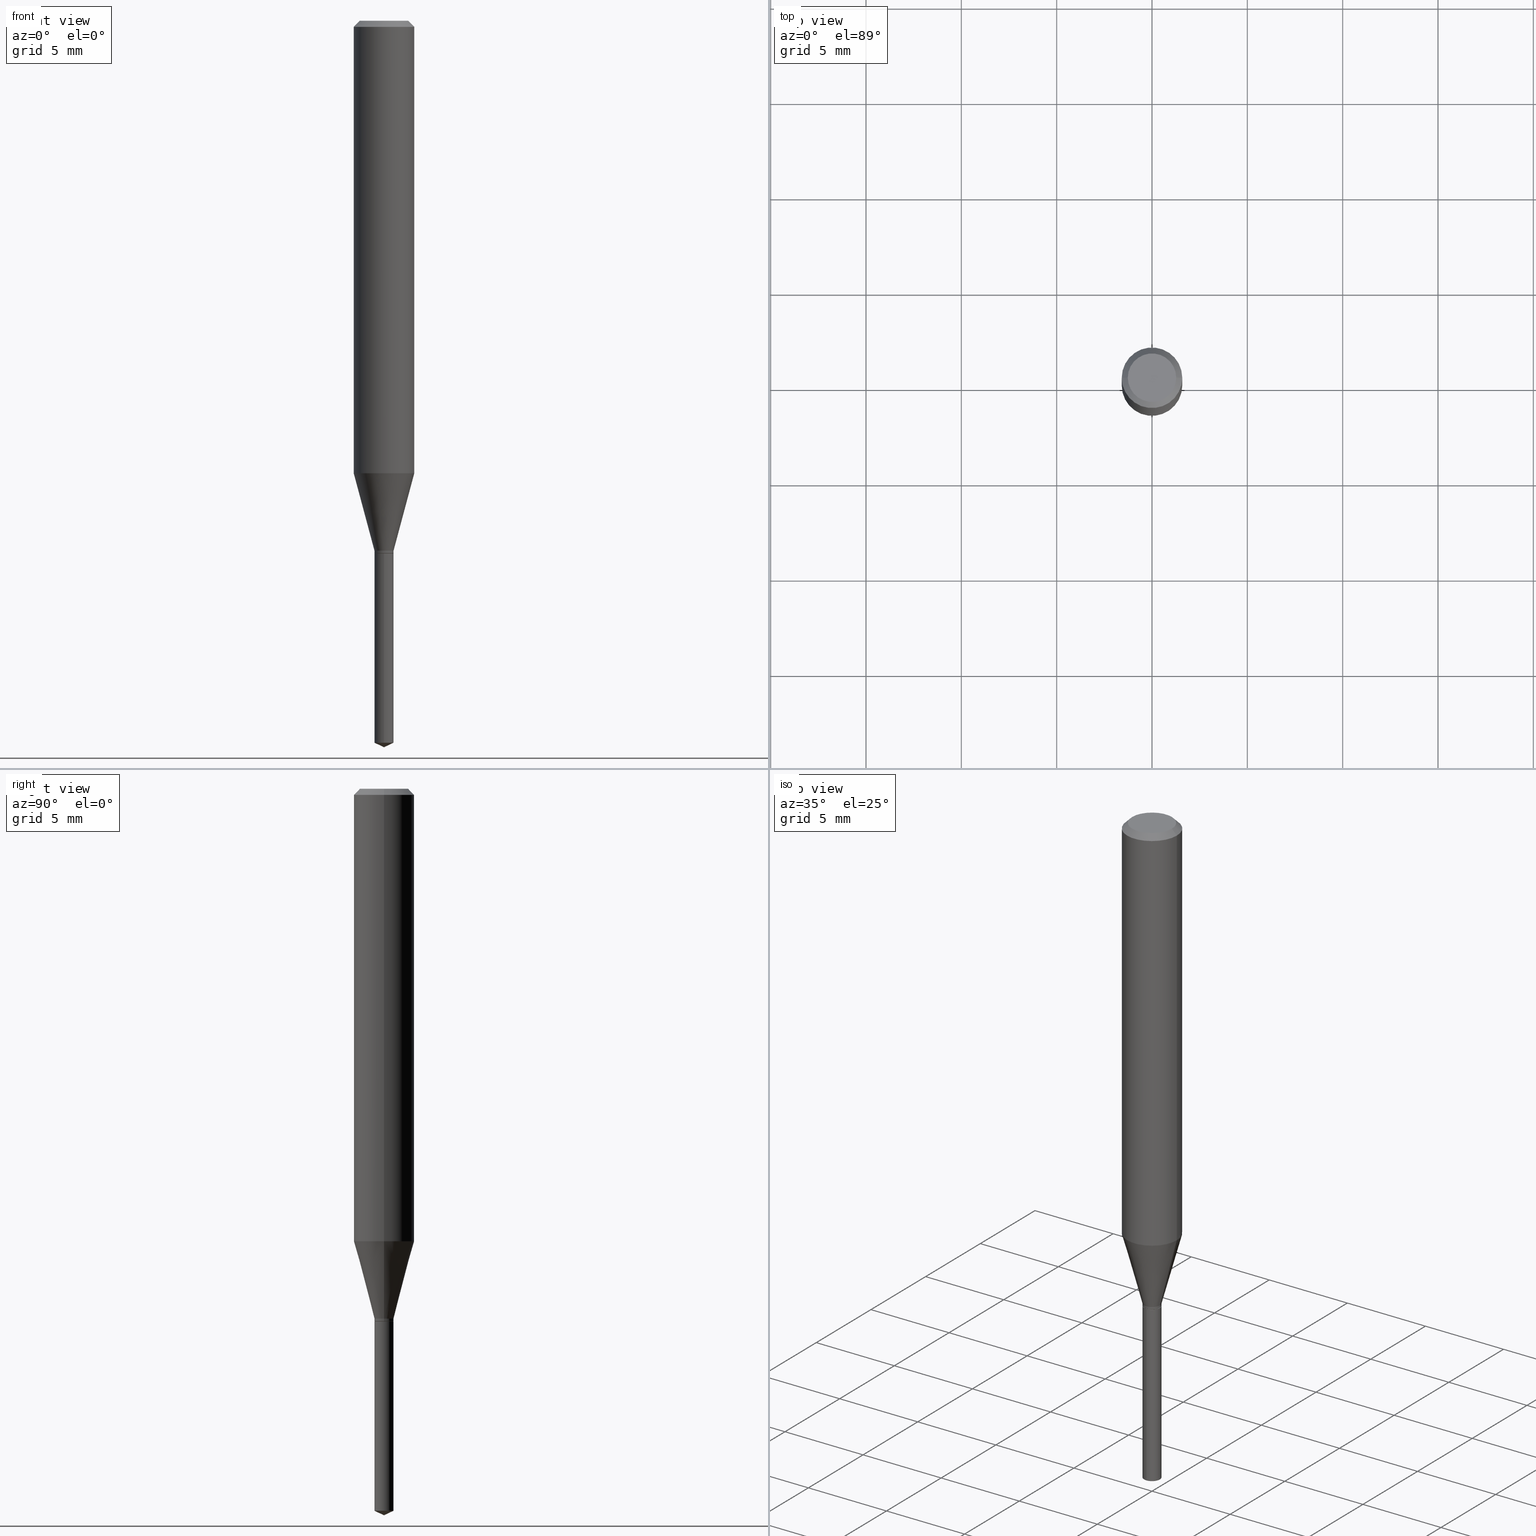
[diagram: canonical four-view strip — front | top / right | iso, engineering-drawing reading convention]
A machine part, canonical four-view strip (front | top / right | iso — engineering-drawing reading convention). The complete STEP part file that produces these views, byte-faithful:
ISO-10303-21;
HEADER;
FILE_DESCRIPTION (( 'STEP AP203' ),
    '1' );
FILE_NAME ('07151.STEP',
    '2024-04-23T19:46:03',
    ( '' ),
    ( '' ),
    'SwSTEP 2.0',
    'SolidWorks 2023',
    '' );
FILE_SCHEMA (( 'CONFIG_CONTROL_DESIGN' ));
ENDSEC;

DATA;
#1 = FACE_OUTER_BOUND ( 'NONE', #287, .T. ) ;
#2 = DIMENSIONAL_EXPONENTS ( 1.000000000000000000, 0.000000000000000000, 0.000000000000000000, 0.000000000000000000, 0.000000000000000000, 0.000000000000000000, 0.000000000000000000 ) ;
#3 = CARTESIAN_POINT ( 'NONE',  ( 3.644757197305334190E-29, -5.206553623865002220E-15, -1.490813739134346783 ) ) ;
#4 = DIRECTION ( 'NONE',  ( -1.000000000000000000, 6.982962677686266711E-15, 0.000000000000000000 ) ) ;
#5 = AXIS2_PLACEMENT_3D ( 'NONE', #435, #340, #79 ) ;
#6 = DIRECTION ( 'NONE',  ( 1.000000000000000000, -6.982962677686265922E-15, 4.876194921942043128E-29 ) ) ;
#7 =( NAMED_UNIT ( * ) PLANE_ANGLE_UNIT ( ) SI_UNIT ( $, .RADIAN. ) );
#8 = DATE_AND_TIME ( #191, #358 ) ;
#9 = DIRECTION ( 'NONE',  ( -2.445468806185136877E-29, 3.491481338843145188E-15, 1.000000000000000000 ) ) ;
#10 = COORDINATED_UNIVERSAL_TIME_OFFSET ( 5, 0, .BEHIND. ) ;
#11 = EDGE_CURVE ( 'NONE', #373, #155, #243, .T. ) ;
#12 = VECTOR ( 'NONE', #389, 39.37007874015748854 ) ;
#13 = CIRCLE ( 'NONE', #67, 0.01969999999999999876 ) ;
#14 = APPROVAL_STATUS ( 'not_yet_approved' ) ;
#15 = EDGE_LOOP ( 'NONE', ( #194, #472, #193, #134 ) ) ;
#16 = PERSON_AND_ORGANIZATION_ROLE ( 'creator' ) ;
#17 = PERSON_AND_ORGANIZATION ( #262, #469 ) ;
#18 = AXIS2_PLACEMENT_3D ( 'NONE', #413, #408, #380 ) ;
#19 = ORIENTED_EDGE ( 'NONE', *, *, #131, .T. ) ;
#20 = EDGE_CURVE ( 'NONE', #64, #198, #291, .T. ) ;
#21 = ORIENTED_EDGE ( 'NONE', *, *, #205, .F. ) ;
#22 = EDGE_LOOP ( 'NONE', ( #277, #85, #247, #161 ) ) ;
#23 = DIRECTION ( 'NONE',  ( 1.000000000000000000, -6.982962677686277755E-15, 0.000000000000000000 ) ) ;
#24 = ORIENTED_EDGE ( 'NONE', *, *, #329, .F. ) ;
#25 = ORIENTED_EDGE ( 'NONE', *, *, #125, .T. ) ;
#26 = EDGE_CURVE ( 'NONE', #425, #213, #326, .T. ) ;
#27 = DIRECTION ( 'NONE',  ( 1.000000000000000000, -6.982962677686277755E-15, 0.000000000000000000 ) ) ;
#28 = DIRECTION ( 'NONE',  ( 1.000000000000000000, -6.982962677686265922E-15, 4.876194921942043128E-29 ) ) ;
#29 = AXIS2_PLACEMENT_3D ( 'NONE', #320, #173, #296 ) ;
#30 = AXIS2_PLACEMENT_3D ( 'NONE', #265, #147, #229 ) ;
#31 = CARTESIAN_POINT ( 'NONE',  ( 2.690015686803650369E-29, -3.840629472727460101E-15, -1.100000000000000089 ) ) ;
#32 = DIRECTION ( 'NONE',  ( -2.442957897581693293E-29, 3.495077102875319228E-15, 1.000000000000000000 ) ) ;
#33 = COORDINATED_UNIVERSAL_TIME_OFFSET ( 5, 0, .BEHIND. ) ;
#34 = DIRECTION ( 'NONE',  ( 1.000000000000000000, -6.982962677686278543E-15, 0.000000000000000000 ) ) ;
#35 = DIRECTION ( 'NONE',  ( 2.442957897581692732E-29, -3.495077102875319228E-15, -1.000000000000000000 ) ) ;
#36 = DIRECTION ( 'NONE',  ( -6.982962677686266711E-15, -1.000000000000000000, 3.520397390770457025E-15 ) ) ;
#37 = PLANE ( 'NONE',  #409 ) ;
#38 = VECTOR ( 'NONE', #440, 39.37007874015748854 ) ;
#39 = CARTESIAN_POINT ( 'NONE',  ( -0.06250000000000000000, 3.927916506198521080E-16, -0.01250000000000008049 ) ) ;
#40 = LINE ( 'NONE', #379, #84 ) ;
#41 =( GEOMETRIC_REPRESENTATION_CONTEXT ( 3 ) GLOBAL_UNCERTAINTY_ASSIGNED_CONTEXT ( ( #137 ) ) GLOBAL_UNIT_ASSIGNED_CONTEXT ( ( #113, #7, #189 ) ) REPRESENTATION_CONTEXT ( 'NONE', 'WORKASPACE' ) );
#42 = FACE_OUTER_BOUND ( 'NONE', #207, .T. ) ;
#43 = ADVANCED_FACE ( 'NONE', ( #370 ), #295, .T. ) ;
#44 = CARTESIAN_POINT ( 'NONE',  ( 0.01969999999999999876, -1.375643647504194363E-16, 9.606068248317991466E-31 ) ) ;
#45 = APPROVAL_DATE_TIME ( #390, #112 ) ;
#46 = DIRECTION ( 'NONE',  ( -2.445468806185136597E-29, 3.491481338843145583E-15, 1.000000000000000000 ) ) ;
#47 = SHAPE_DEFINITION_REPRESENTATION ( #55, #167 ) ;
#48 = EDGE_CURVE ( 'NONE', #121, #256, #100, .T. ) ;
#49 = ORIENTED_EDGE ( 'NONE', *, *, #48, .T. ) ;
#50 = CONICAL_SURFACE ( 'NONE', #222, 0.01969999999999999876, 0.2617993877991499629 ) ;
#51 = EDGE_LOOP ( 'NONE', ( #359, #52, #417, #234 ) ) ;
#52 = ORIENTED_EDGE ( 'NONE', *, *, #386, .T. ) ;
#53 = EDGE_LOOP ( 'NONE', ( #396, #21 ) ) ;
#54 = FACE_OUTER_BOUND ( 'NONE', #51, .T. ) ;
#55 = PRODUCT_DEFINITION_SHAPE ( 'NONE', 'NONE',  #446 ) ;
#56 = FACE_OUTER_BOUND ( 'NONE', #163, .T. ) ;
#57 = ORIENTED_EDGE ( 'NONE', *, *, #283, .T. ) ;
#58 = PERSON_AND_ORGANIZATION_ROLE ( 'creator' ) ;
#59 = DIRECTION ( 'NONE',  ( -2.445468806185136597E-29, 3.491481338843145583E-15, 1.000000000000000000 ) ) ;
#60 = CC_DESIGN_PERSON_AND_ORGANIZATION_ASSIGNMENT ( #346, #464, ( #182 ) ) ;
#61 = ORIENTED_EDGE ( 'NONE', *, *, #317, .T. ) ;
#62 = LINE ( 'NONE', #331, #268 ) ;
#63 = ORIENTED_EDGE ( 'NONE', *, *, #443, .F. ) ;
#64 = VERTEX_POINT ( 'NONE', #75 ) ;
#65 = CARTESIAN_POINT ( 'NONE',  ( -9.251224594084451282E-28, 1.323628004292452236E-13, 37.87007874015748143 ) ) ;
#66 = DIRECTION ( 'NONE',  ( -2.445468806185136877E-29, 3.491481338843145188E-15, 1.000000000000000000 ) ) ;
#67 = AXIS2_PLACEMENT_3D ( 'NONE', #337, #383, #342 ) ;
#68 = EDGE_LOOP ( 'NONE', ( #61, #462, #118, #436 ) ) ;
#69 = PERSON_AND_ORGANIZATION_ROLE ( 'design_owner' ) ;
#70 = CARTESIAN_POINT ( 'NONE',  ( 2.675587420847158338E-29, -3.820029732828286359E-15, -1.094100000000000295 ) ) ;
#71 = ORIENTED_EDGE ( 'NONE', *, *, #78, .T. ) ;
#72 = CYLINDRICAL_SURFACE ( 'NONE', #400, 0.01969999999999999876 ) ;
#73 = CARTESIAN_POINT ( 'NONE',  ( 0.06250000000000005551, -4.364351673553920638E-16, 3.047610484872462323E-30 ) ) ;
#74 = CARTESIAN_POINT ( 'NONE',  ( 0.000000000000000000, 0.000000000000000000, 0.000000000000000000 ) ) ;
#75 = CARTESIAN_POINT ( 'NONE',  ( 0.01969999999999999876, -3.957594097578706363E-15, -1.094100000000000295 ) ) ;
#76 = ADVANCED_FACE ( 'NONE', ( #328 ), #37, .F. ) ;
#77 = AXIS2_PLACEMENT_3D ( 'NONE', #135, #293, #444 ) ;
#78 = EDGE_CURVE ( 'NONE', #406, #307, #427, .T. ) ;
#79 = DIRECTION ( 'NONE',  ( 1.000000000000000000, -6.982962677686278543E-15, 0.000000000000000000 ) ) ;
#80 = CIRCLE ( 'NONE', #5, 0.01969999999999999876 ) ;
#81 = CC_DESIGN_APPROVAL ( #185, ( #488 ) ) ;
#82 = EDGE_LOOP ( 'NONE', ( #19, #289, #139, #63 ) ) ;
#83 = EDGE_CURVE ( 'NONE', #198, #373, #180, .T. ) ;
#84 = VECTOR ( 'NONE', #219, 39.37007874015748143 ) ;
#85 = ORIENTED_EDGE ( 'NONE', *, *, #391, .F. ) ;
#86 = COORDINATED_UNIVERSAL_TIME_OFFSET ( 5, 0, .BEHIND. ) ;
#87 = ORIENTED_EDGE ( 'NONE', *, *, #386, .F. ) ;
#88 = EDGE_CURVE ( 'NONE', #157, #198, #487, .T. ) ;
#89 = ORIENTED_EDGE ( 'NONE', *, *, #88, .T. ) ;
#90 = PERSON_AND_ORGANIZATION ( #262, #469 ) ;
#91 = DIRECTION ( 'NONE',  ( 1.000000000000000000, -6.982962677686265922E-15, 4.876176775795935232E-29 ) ) ;
#92 = AXIS2_PLACEMENT_3D ( 'NONE', #190, #345, #148 ) ;
#93 = FACE_OUTER_BOUND ( 'NONE', #351, .T. ) ;
#94 = FACE_OUTER_BOUND ( 'NONE', #15, .T. ) ;
#95 = DESIGN_CONTEXT ( 'detailed design', #463, 'design' ) ;
#96 = CARTESIAN_POINT ( 'NONE',  ( 2.688792952400557567E-29, -3.838883732058038598E-15, -1.099499999999999922 ) ) ;
#97 = DIRECTION ( 'NONE',  ( 2.445468806185136597E-29, -3.491481338843145583E-15, -1.000000000000000000 ) ) ;
#98 = VERTEX_POINT ( 'NONE', #476 ) ;
#99 = CARTESIAN_POINT ( 'NONE',  ( 0.06250000000000011102, -3.698764390073353980E-15, -0.9343682254360521355 ) ) ;
#100 = LINE ( 'NONE', #177, #221 ) ;
#101 = AXIS2_PLACEMENT_3D ( 'NONE', #3, #455, #299 ) ;
#102 = AXIS2_PLACEMENT_3D ( 'NONE', #416, #449, #6 ) ;
#103 = CARTESIAN_POINT ( 'NONE',  ( 0.06250000000000000000, -4.800786840909312308E-16, -0.01250000000000008049 ) ) ;
#104 = ORIENTED_EDGE ( 'NONE', *, *, #319, .F. ) ;
#105 = DIRECTION ( 'NONE',  ( -2.445468806185136877E-29, 3.491481338843145188E-15, 1.000000000000000000 ) ) ;
#106 = ORIENTED_EDGE ( 'NONE', *, *, #122, .F. ) ;
#107 = CARTESIAN_POINT ( 'NONE',  ( 0.01919999999999999832, -3.974702356139036309E-15, -1.099999999999999867 ) ) ;
#108 = ADVANCED_FACE ( 'NONE', ( #94 ), #438, .T. ) ;
#109 = VECTOR ( 'NONE', #66, 39.37007874015748143 ) ;
#110 = ADVANCED_FACE ( 'NONE', ( #336 ), #323, .T. ) ;
#111 = CARTESIAN_POINT ( 'NONE',  ( 1.399769189447761387E-16, 0.01969999999999479112, -1.490813739134346783 ) ) ;
#112 = APPROVAL ( #431, 'UNSPECIFIED' ) ;
#113 =( CONVERSION_BASED_UNIT ( 'INCH', #267 ) LENGTH_UNIT ( ) NAMED_UNIT ( #2 ) );
#114 = CARTESIAN_POINT ( 'NONE',  ( 0.01919999999999999832, -3.974702356139036309E-15, -1.099999999999999867 ) ) ;
#115 = CIRCLE ( 'NONE', #101, 0.01969999999999999876 ) ;
#116 = AXIS2_PLACEMENT_3D ( 'NONE', #206, #59, #23 ) ;
#117 = DIRECTION ( 'NONE',  ( 0.000000000000000000, 0.000000000000000000, 1.000000000000000000 ) ) ;
#118 = ORIENTED_EDGE ( 'NONE', *, *, #474, .F. ) ;
#119 = CARTESIAN_POINT ( 'NONE',  ( 0.06250000000000000000, -4.724246415962602840E-16, -0.01250000000000008049 ) ) ;
#120 = ADVANCED_FACE ( 'NONE', ( #448 ), #410, .T. ) ;
#121 = VERTEX_POINT ( 'NONE', #284 ) ;
#122 = EDGE_CURVE ( 'NONE', #64, #256, #80, .T. ) ;
#123 = ORIENTED_EDGE ( 'NONE', *, *, #20, .F. ) ;
#124 = CONICAL_SURFACE ( 'NONE', #116, 0.01919999999999999832, 0.7853981633975486432 ) ;
#125 = EDGE_CURVE ( 'NONE', #430, #467, #304, .T. ) ;
#126 = DIRECTION ( 'NONE',  ( -2.445468806185136597E-29, 3.491481338843145583E-15, 1.000000000000000000 ) ) ;
#127 = EDGE_LOOP ( 'NONE', ( #240, #204, #322 ) ) ;
#128 = CYLINDRICAL_SURFACE ( 'NONE', #199, 0.01969999999999999876 ) ;
#129 = DIRECTION ( 'NONE',  ( -2.442957897581693293E-29, 3.495077102875318834E-15, 1.000000000000000000 ) ) ;
#130 = VECTOR ( 'NONE', #271, 39.37007874015748143 ) ;
#131 = EDGE_CURVE ( 'NONE', #315, #425, #115, .T. ) ;
#132 = CC_DESIGN_SECURITY_CLASSIFICATION ( #488, ( #182 ) ) ;
#133 = CARTESIAN_POINT ( 'NONE',  ( 3.056836007731440539E-31, -4.364351673553960451E-17, -0.01250000000000008049 ) ) ;
#134 = ORIENTED_EDGE ( 'NONE', *, *, #226, .F. ) ;
#135 = CARTESIAN_POINT ( 'NONE',  ( 3.056836007731440539E-31, -4.364351673553960451E-17, -0.01250000000000008049 ) ) ;
#136 = DIRECTION ( 'NONE',  ( 1.000000000000000000, -6.982962677686266711E-15, 4.876176775795935232E-29 ) ) ;
#137 = UNCERTAINTY_MEASURE_WITH_UNIT (LENGTH_MEASURE( 1.000000000000000082E-05 ), #113, 'distance_accuracy_value', 'NONE');
#138 = LINE ( 'NONE', #285, #385 ) ;
#139 = ORIENTED_EDGE ( 'NONE', *, *, #429, .F. ) ;
#140 = EDGE_LOOP ( 'NONE', ( #218, #71 ) ) ;
#141 = DIRECTION ( 'NONE',  ( -2.445468806185136597E-29, 3.491481338843145583E-15, 1.000000000000000000 ) ) ;
#142 = DIRECTION ( 'NONE',  ( 1.000000000000000000, -6.982962677686266711E-15, 0.000000000000000000 ) ) ;
#143 = CIRCLE ( 'NONE', #236, 0.01969999999999999876 ) ;
#144 = CIRCLE ( 'NONE', #77, 0.06250000000000000000 ) ;
#145 = DIRECTION ( 'NONE',  ( -6.982962677686266711E-15, -1.000000000000000000, 3.520397390770457025E-15 ) ) ;
#146 = CARTESIAN_POINT ( 'NONE',  ( 3.056836007731440539E-31, -4.364351673553960451E-17, -0.01250000000000008049 ) ) ;
#147 = DIRECTION ( 'NONE',  ( -2.438088387897960049E-29, 3.491481338843145188E-15, 1.000000000000000000 ) ) ;
#148 = DIRECTION ( 'NONE',  ( 1.000000000000000000, -6.982962677686277755E-15, 0.000000000000000000 ) ) ;
#149 = AXIS2_PLACEMENT_3D ( 'NONE', #150, #259, #4 ) ;
#150 = CARTESIAN_POINT ( 'NONE',  ( 3.056836007731440539E-31, -4.364351673553960451E-17, -0.01250000000000008049 ) ) ;
#151 = ADVANCED_FACE ( 'NONE', ( #54 ), #196, .T. ) ;
#152 = PLANE ( 'NONE',  #30 ) ;
#153 = PERSON_AND_ORGANIZATION_ROLE ( 'classification_officer' ) ;
#154 = AXIS2_PLACEMENT_3D ( 'NONE', #248, #405, #479 ) ;
#155 = VERTEX_POINT ( 'NONE', #398 ) ;
#156 = COORDINATED_UNIVERSAL_TIME_OFFSET ( 5, 0, .BEHIND. ) ;
#157 = VERTEX_POINT ( 'NONE', #473 ) ;
#158 = DATE_TIME_ROLE ( 'classification_date' ) ;
#159 = PERSON_AND_ORGANIZATION ( #262, #469 ) ;
#160 = LOCAL_TIME ( 15, 46, 3.000000000000000000, #86 ) ;
#161 = ORIENTED_EDGE ( 'NONE', *, *, #356, .T. ) ;
#162 = CARTESIAN_POINT ( 'NONE',  ( 0.000000000000000000, 0.000000000000000000, 0.000000000000000000 ) ) ;
#163 = EDGE_LOOP ( 'NONE', ( #321, #220, #399, #242 ) ) ;
#164 = APPROVAL_ROLE ( '' ) ;
#165 = DIRECTION ( 'NONE',  ( 6.439704144417028775E-15, 0.9063077870366519351, 0.4226182617406950559 ) ) ;
#166 = DIRECTION ( 'NONE',  ( 6.982962677686265922E-15, 1.000000000000000000, -3.495077102875319228E-15 ) ) ;
#167 = ADVANCED_BREP_SHAPE_REPRESENTATION ( '07151', ( #179, #352, #411 ), #41 ) ;
#168 = ADVANCED_FACE ( 'NONE', ( #56 ), #128, .T. ) ;
#169 = CARTESIAN_POINT ( 'NONE',  ( 2.284968348794427209E-29, -3.262329222717961522E-15, -0.9343682254360521355 ) ) ;
#170 = AXIS2_PLACEMENT_3D ( 'NONE', #360, #46, #347 ) ;
#171 = AXIS2_PLACEMENT_3D ( 'NONE', #74, #453, #183 ) ;
#172 = CARTESIAN_POINT ( 'NONE',  ( 2.690015686803650369E-29, -3.840629472727460101E-15, -1.100000000000000089 ) ) ;
#173 = DIRECTION ( 'NONE',  ( 2.438088387897960049E-29, -3.491481338843145188E-15, -1.000000000000000000 ) ) ;
#174 = CARTESIAN_POINT ( 'NONE',  ( 0.01969999999999999876, -3.957594097578706363E-15, -1.094100000000000295 ) ) ;
#175 = CALENDAR_DATE ( 2024, 23, 4 ) ;
#176 = DIRECTION ( 'NONE',  ( -2.445468806185136597E-29, 3.491481338843145583E-15, 1.000000000000000000 ) ) ;
#177 = CARTESIAN_POINT ( 'NONE',  ( -0.01969999999999999876, 1.399769189447397278E-16, -9.690302127802162501E-31 ) ) ;
#178 = DIRECTION ( 'NONE',  ( -2.442957897581693293E-29, 3.495077102875318834E-15, 1.000000000000000000 ) ) ;
#179 = MANIFOLD_SOLID_BREP ( 'Body-Move/Copy2[1]', #253 ) ;
#180 = LINE ( 'NONE', #73, #109 ) ;
#181 = CIRCLE ( 'NONE', #433, 0.01969999999999999876 ) ;
#182 = PRODUCT_DEFINITION_FORMATION_WITH_SPECIFIED_SOURCE ( 'ANY', '', #371, .NOT_KNOWN. ) ;
#183 = DIRECTION ( 'NONE',  ( 1.000000000000000000, -6.982962677686265922E-15, 4.876176775795935232E-29 ) ) ;
#184 = DIRECTION ( 'NONE',  ( -0.7071067811865453523, 2.468850131082234184E-15, -0.7071067811865496822 ) ) ;
#185 = APPROVAL ( #14, 'UNSPECIFIED' ) ;
#186 = CYLINDRICAL_SURFACE ( 'NONE', #171, 0.01969999999999999876 ) ;
#187 = AXIS2_PLACEMENT_3D ( 'NONE', #314, #126, #241 ) ;
#188 = AXIS2_PLACEMENT_3D ( 'NONE', #384, #261, #298 ) ;
#189 =( NAMED_UNIT ( * ) SI_UNIT ( $, .STERADIAN. ) SOLID_ANGLE_UNIT ( ) );
#190 = CARTESIAN_POINT ( 'NONE',  ( 2.690015686803649808E-29, -3.840629472727460101E-15, -1.099999999999999867 ) ) ;
#191 = CALENDAR_DATE ( 2024, 23, 4 ) ;
#192 = CIRCLE ( 'NONE', #450, 0.01919999999999999832 ) ;
#193 = ORIENTED_EDGE ( 'NONE', *, *, #443, .T. ) ;
#194 = ORIENTED_EDGE ( 'NONE', *, *, #26, .F. ) ;
#195 = EDGE_CURVE ( 'NONE', #256, #64, #357, .T. ) ;
#196 = CYLINDRICAL_SURFACE ( 'NONE', #187, 0.06250000000000005551 ) ;
#197 = EDGE_CURVE ( 'NONE', #406, #373, #461, .T. ) ;
#198 = VERTEX_POINT ( 'NONE', #99 ) ;
#199 = AXIS2_PLACEMENT_3D ( 'NONE', #162, #201, #91 ) ;
#200 = CONICAL_SURFACE ( 'NONE', #92, 0.01919999999999999832, 0.7853981633975486432 ) ;
#201 = DIRECTION ( 'NONE',  ( -2.445468806185136597E-29, 3.491481338843145583E-15, 1.000000000000000000 ) ) ;
#202 = VERTEX_POINT ( 'NONE', #215 ) ;
#203 = FACE_OUTER_BOUND ( 'NONE', #318, .T. ) ;
#204 = ORIENTED_EDGE ( 'NONE', *, *, #319, .T. ) ;
#205 = EDGE_CURVE ( 'NONE', #468, #430, #192, .T. ) ;
#206 = CARTESIAN_POINT ( 'NONE',  ( 2.690015686803649808E-29, -3.840629472727460101E-15, -1.099999999999999867 ) ) ;
#207 = EDGE_LOOP ( 'NONE', ( #397, #49, #106, #363 ) ) ;
#208 = ADVANCED_FACE ( 'NONE', ( #372 ), #482, .F. ) ;
#209 = CARTESIAN_POINT ( 'NONE',  ( -0.01969999999999999876, -3.680052813883547051E-15, -1.094100000000000295 ) ) ;
#210 = AXIS2_PLACEMENT_3D ( 'NONE', #376, #480, #286 ) ;
#211 = VECTOR ( 'NONE', #9, 39.37007874015748143 ) ;
#212 = ORIENTED_EDGE ( 'NONE', *, *, #11, .T. ) ;
#213 = VERTEX_POINT ( 'NONE', #254 ) ;
#214 = APPLICATION_PROTOCOL_DEFINITION ( 'international standard', 'config_control_design', 1994, #463 ) ;
#215 = CARTESIAN_POINT ( 'NONE',  ( 3.664436846372539659E-29, -5.242615654312978645E-15, -1.500000000000000222 ) ) ;
#216 = DIRECTION ( 'NONE',  ( -1.000000000000000000, 6.982962677686266711E-15, 0.000000000000000000 ) ) ;
#217 = LINE ( 'NONE', #209, #454 ) ;
#218 = ORIENTED_EDGE ( 'NONE', *, *, #391, .T. ) ;
#219 = DIRECTION ( 'NONE',  ( -2.442957897581693293E-29, 3.495077102875319228E-15, 1.000000000000000000 ) ) ;
#220 = ORIENTED_EDGE ( 'NONE', *, *, #279, .T. ) ;
#221 = VECTOR ( 'NONE', #415, 39.37007874015748143 ) ;
#222 = AXIS2_PLACEMENT_3D ( 'NONE', #70, #325, #34 ) ;
#223 = CC_DESIGN_DATE_AND_TIME_ASSIGNMENT ( #423, #276, ( #446 ) ) ;
#224 = EDGE_CURVE ( 'NONE', #202, #425, #138, .T. ) ;
#225 =( LENGTH_UNIT ( ) NAMED_UNIT ( * ) SI_UNIT ( $, .METRE. ) );
#226 = EDGE_CURVE ( 'NONE', #213, #98, #143, .T. ) ;
#227 = AXIS2_PLACEMENT_3D ( 'NONE', #486, #366, #28 ) ;
#228 = LOCAL_TIME ( 15, 46, 3.000000000000000000, #353 ) ;
#229 = DIRECTION ( 'NONE',  ( 1.000000000000000000, -6.982962677686265922E-15, 4.876176775795935793E-29 ) ) ;
#230 = ORIENTED_EDGE ( 'NONE', *, *, #283, .F. ) ;
#231 = CARTESIAN_POINT ( 'NONE',  ( 0.000000000000000000, 0.000000000000000000, 0.000000000000000000 ) ) ;
#232 = CC_DESIGN_PERSON_AND_ORGANIZATION_ASSIGNMENT ( #292, #58, ( #446 ) ) ;
#233 = APPROVAL_ROLE ( '' ) ;
#234 = ORIENTED_EDGE ( 'NONE', *, *, #83, .F. ) ;
#235 = ORIENTED_EDGE ( 'NONE', *, *, #197, .T. ) ;
#236 = AXIS2_PLACEMENT_3D ( 'NONE', #246, #489, #437 ) ;
#237 = VECTOR ( 'NONE', #105, 39.37007874015748143 ) ;
#238 = PRODUCT_RELATED_PRODUCT_CATEGORY ( 'detail', '', ( #371 ) ) ;
#239 = ORIENTED_EDGE ( 'NONE', *, *, #226, .T. ) ;
#240 = ORIENTED_EDGE ( 'NONE', *, *, #224, .F. ) ;
#241 = DIRECTION ( 'NONE',  ( 1.000000000000000000, -6.982962677686266711E-15, 4.876176775795935232E-29 ) ) ;
#242 = ORIENTED_EDGE ( 'NONE', *, *, #195, .F. ) ;
#243 = CIRCLE ( 'NONE', #441, 0.06250000000000000000 ) ;
#244 = PERSON_AND_ORGANIZATION ( #262, #469 ) ;
#245 = CONICAL_SURFACE ( 'NONE', #255, 84.42940631927426409, 1.134464013796315562 ) ;
#246 = CARTESIAN_POINT ( 'NONE',  ( 2.690015686803650369E-29, -3.840629472727460101E-15, -1.100000000000000089 ) ) ;
#247 = ORIENTED_EDGE ( 'NONE', *, *, #470, .T. ) ;
#248 = CARTESIAN_POINT ( 'NONE',  ( 2.690015686803649808E-29, -3.840629472727460101E-15, -1.099999999999999867 ) ) ;
#249 = CARTESIAN_POINT ( 'NONE',  ( 2.690015686803650369E-29, -3.840629472727460101E-15, -1.100000000000000089 ) ) ;
#250 = EDGE_LOOP ( 'NONE', ( #230, #395, #273, #344 ) ) ;
#251 = DIRECTION ( 'NONE',  ( -2.445468806185136597E-29, 3.491481338843145583E-15, 1.000000000000000000 ) ) ;
#252 = DIRECTION ( 'NONE',  ( -6.982962677686265133E-15, -1.000000000000000000, 6.933624349401683764E-15 ) ) ;
#253 = CLOSED_SHELL ( 'NONE', ( #263, #310, #303, #108, #76 ) ) ;
#254 = CARTESIAN_POINT ( 'NONE',  ( 1.399769189447762373E-16, 0.01969999999999615461, -1.100000000000000089 ) ) ;
#255 = AXIS2_PLACEMENT_3D ( 'NONE', #369, #178, #145 ) ;
#256 = VERTEX_POINT ( 'NONE', #475 ) ;
#257 = DIRECTION ( 'NONE',  ( -2.442957897581693293E-29, 3.495077102875318834E-15, 1.000000000000000000 ) ) ;
#258 = CARTESIAN_POINT ( 'NONE',  ( 1.399769189447665984E-16, 0.01969999999999615461, -1.100000000000000089 ) ) ;
#259 = DIRECTION ( 'NONE',  ( 2.445468806185136597E-29, -3.491481338843145583E-15, -1.000000000000000000 ) ) ;
#260 = DIRECTION ( 'NONE',  ( -2.442957897581693293E-29, 3.495077102875318834E-15, 1.000000000000000000 ) ) ;
#261 = DIRECTION ( 'NONE',  ( -2.442957897581693293E-29, 3.495077102875318834E-15, 1.000000000000000000 ) ) ;
#262 = PERSON ( 'UNSPECIFIED', 'UNSPECIFIED', 'UNSPECIFIED', ('UNSPECIFIED'), ('UNSPECIFIED'), ('UNSPECIFIED') ) ;
#263 = ADVANCED_FACE ( 'NONE', ( #362 ), #72, .T. ) ;
#264 = CARTESIAN_POINT ( 'NONE',  ( 0.01969999999999999876, -3.976448096808457812E-15, -1.099499999999999922 ) ) ;
#265 = CARTESIAN_POINT ( 'NONE',  ( 8.154607311531938909E-29, 3.984976759123295598E-15, -1.100000000000000089 ) ) ;
#266 = EDGE_CURVE ( 'NONE', #198, #157, #333, .T. ) ;
#267 = LENGTH_MEASURE_WITH_UNIT ( LENGTH_MEASURE( 0.02539999999999999897 ), #225 );
#268 = VECTOR ( 'NONE', #290, 39.37007874015748143 ) ;
#269 = ORIENTED_EDGE ( 'NONE', *, *, #356, .F. ) ;
#270 = APPROVAL_DATE_TIME ( #466, #185 ) ;
#271 = DIRECTION ( 'NONE',  ( 0.7071067811865453523, -7.319954787623248157E-15, -0.7071067811865496822 ) ) ;
#272 = SECURITY_CLASSIFICATION_LEVEL ( 'unclassified' ) ;
#273 = ORIENTED_EDGE ( 'NONE', *, *, #20, .T. ) ;
#274 = VECTOR ( 'NONE', #32, 39.37007874015748143 ) ;
#275 = ORIENTED_EDGE ( 'NONE', *, *, #122, .T. ) ;
#276 = DATE_TIME_ROLE ( 'creation_date' ) ;
#277 = ORIENTED_EDGE ( 'NONE', *, *, #197, .F. ) ;
#278 = ORIENTED_EDGE ( 'NONE', *, *, #205, .T. ) ;
#279 = EDGE_CURVE ( 'NONE', #121, #467, #181, .T. ) ;
#280 = ORIENTED_EDGE ( 'NONE', *, *, #224, .T. ) ;
#281 = AXIS2_PLACEMENT_3D ( 'NONE', #420, #388, #305 ) ;
#282 = DIRECTION ( 'NONE',  ( 1.000000000000000000, -6.982962677686265922E-15, 0.000000000000000000 ) ) ;
#283 = EDGE_CURVE ( 'NONE', #256, #157, #217, .T. ) ;
#284 = CARTESIAN_POINT ( 'NONE',  ( -0.01969999999999999876, -3.689479813498422381E-15, -1.099499999999999922 ) ) ;
#285 = CARTESIAN_POINT ( 'NONE',  ( 3.670009284250152623E-29, -5.234704973442197256E-15, -1.500000000000000222 ) ) ;
#286 = DIRECTION ( 'NONE',  ( 1.000000000000000000, -6.982962677686265922E-15, 0.000000000000000000 ) ) ;
#287 = EDGE_LOOP ( 'NONE', ( #471, #235, #212, #465 ) ) ;
#288 = MECHANICAL_CONTEXT ( 'NONE', #364, 'mechanical' ) ;
#289 = ORIENTED_EDGE ( 'NONE', *, *, #26, .T. ) ;
#290 = DIRECTION ( 'NONE',  ( -6.328713451373374112E-15, -0.9063077870366490485, 0.4226182617407013287 ) ) ;
#291 = LINE ( 'NONE', #174, #38 ) ;
#292 = PERSON_AND_ORGANIZATION ( #262, #469 ) ;
#293 = DIRECTION ( 'NONE',  ( -2.445468806185136597E-29, 3.491481338843145583E-15, 1.000000000000000000 ) ) ;
#294 = APPROVAL_PERSON_ORGANIZATION ( #17, #185, #457 ) ;
#295 = CYLINDRICAL_SURFACE ( 'NONE', #348, 0.06250000000000005551 ) ;
#296 = DIRECTION ( 'NONE',  ( -1.000000000000000000, 6.982962677686265922E-15, -4.876176775795935793E-29 ) ) ;
#297 = DIRECTION ( 'NONE',  ( -2.445468806185136597E-29, 3.491481338843145583E-15, 1.000000000000000000 ) ) ;
#298 = DIRECTION ( 'NONE',  ( -6.982962677686265133E-15, -1.000000000000000000, 0.000000000000000000 ) ) ;
#299 = DIRECTION ( 'NONE',  ( -6.982962677686265133E-15, -1.000000000000000000, 0.000000000000000000 ) ) ;
#300 = FACE_OUTER_BOUND ( 'NONE', #53, .T. ) ;
#301 = CONICAL_SURFACE ( 'NONE', #335, 84.42940631927426409, 1.134464013796315562 ) ;
#302 = FACE_OUTER_BOUND ( 'NONE', #68, .T. ) ;
#303 = ADVANCED_FACE ( 'NONE', ( #375 ), #301, .T. ) ;
#304 = LINE ( 'NONE', #114, #12 ) ;
#305 = DIRECTION ( 'NONE',  ( 1.000000000000000000, -6.982962677686278543E-15, 0.000000000000000000 ) ) ;
#306 = LOCAL_TIME ( 15, 46, 3.000000000000000000, #156 ) ;
#307 = VERTEX_POINT ( 'NONE', #447 ) ;
#308 = CALENDAR_DATE ( 2024, 23, 4 ) ;
#309 = CC_DESIGN_PERSON_AND_ORGANIZATION_ASSIGNMENT ( #90, #69, ( #371 ) ) ;
#310 = ADVANCED_FACE ( 'NONE', ( #93 ), #245, .T. ) ;
#311 = CALENDAR_DATE ( 2024, 23, 4 ) ;
#312 = AXIS2_PLACEMENT_3D ( 'NONE', #133, #97, #216 ) ;
#313 = LOCAL_TIME ( 15, 46, 3.000000000000000000, #33 ) ;
#314 = CARTESIAN_POINT ( 'NONE',  ( 0.000000000000000000, 0.000000000000000000, 0.000000000000000000 ) ) ;
#315 = VERTEX_POINT ( 'NONE', #327 ) ;
#316 = ADVANCED_FACE ( 'NONE', ( #203 ), #124, .T. ) ;
#317 = EDGE_CURVE ( 'NONE', #430, #468, #428, .T. ) ;
#318 = EDGE_LOOP ( 'NONE', ( #24, #278, #25, #460 ) ) ;
#319 = EDGE_CURVE ( 'NONE', #202, #315, #62, .T. ) ;
#320 = CARTESIAN_POINT ( 'NONE',  ( -4.132873053354867254E-48, 5.900647395337818946E-34, 1.690012582823346072E-19 ) ) ;
#321 = ORIENTED_EDGE ( 'NONE', *, *, #48, .F. ) ;
#322 = ORIENTED_EDGE ( 'NONE', *, *, #481, .F. ) ;
#323 = CONICAL_SURFACE ( 'NONE', #312, 0.06250000000000000000, 0.7853981633974452814 ) ;
#324 = CC_DESIGN_APPROVAL ( #361, ( #446 ) ) ;
#325 = DIRECTION ( 'NONE',  ( -2.445468806185136597E-29, 3.491481338843145583E-15, 1.000000000000000000 ) ) ;
#326 = LINE ( 'NONE', #258, #274 ) ;
#327 = CARTESIAN_POINT ( 'NONE',  ( -1.375643647503830007E-16, -0.01970000000000520640, -1.490813739134346783 ) ) ;
#328 = FACE_OUTER_BOUND ( 'NONE', #392, .T. ) ;
#329 = EDGE_CURVE ( 'NONE', #468, #121, #365, .T. ) ;
#330 = DATE_AND_TIME ( #175, #313 ) ;
#331 = CARTESIAN_POINT ( 'NONE',  ( 3.664436846372539659E-29, -5.242615654312978645E-15, -1.500000000000000222 ) ) ;
#332 = DIRECTION ( 'NONE',  ( -2.445468806185136597E-29, 3.491481338843145583E-15, 1.000000000000000000 ) ) ;
#333 = CIRCLE ( 'NONE', #477, 0.06250000000000011102 ) ;
#334 = CARTESIAN_POINT ( 'NONE',  ( 2.690015686803649808E-29, -3.840629472727460101E-15, -1.099999999999999867 ) ) ;
#335 = AXIS2_PLACEMENT_3D ( 'NONE', #65, #257, #36 ) ;
#336 = FACE_OUTER_BOUND ( 'NONE', #22, .T. ) ;
#337 = CARTESIAN_POINT ( 'NONE',  ( 2.690015686803650369E-29, -3.840629472727460101E-15, -1.100000000000000089 ) ) ;
#338 = CARTESIAN_POINT ( 'NONE',  ( 0.04999999999999999584, -4.077247707424184212E-16, 3.380025165673154903E-19 ) ) ;
#339 = CARTESIAN_POINT ( 'NONE',  ( -0.01919999999999999832, -3.701556040287408912E-15, -1.099999999999999867 ) ) ;
#340 = DIRECTION ( 'NONE',  ( -2.445468806185136597E-29, 3.491481338843145583E-15, 1.000000000000000000 ) ) ;
#341 = CIRCLE ( 'NONE', #281, 0.01969999999999999876 ) ;
#342 = DIRECTION ( 'NONE',  ( -6.982962677686265133E-15, -1.000000000000000000, 6.933624349401683764E-15 ) ) ;
#343 = PERSON_AND_ORGANIZATION ( #262, #469 ) ;
#344 = ORIENTED_EDGE ( 'NONE', *, *, #88, .F. ) ;
#345 = DIRECTION ( 'NONE',  ( -2.445468806185136597E-29, 3.491481338843145583E-15, 1.000000000000000000 ) ) ;
#346 = PERSON_AND_ORGANIZATION ( #262, #469 ) ;
#347 = DIRECTION ( 'NONE',  ( 1.000000000000000000, -6.982962677686278543E-15, 0.000000000000000000 ) ) ;
#348 = AXIS2_PLACEMENT_3D ( 'NONE', #445, #332, #136 ) ;
#349 = CALENDAR_DATE ( 2024, 23, 4 ) ;
#350 = ADVANCED_FACE ( 'NONE', ( #485 ), #50, .T. ) ;
#351 = EDGE_LOOP ( 'NONE', ( #104, #280, #354 ) ) ;
#352 = MANIFOLD_SOLID_BREP ( 'Body-Move/Copy2[2]', #418 ) ;
#353 = COORDINATED_UNIVERSAL_TIME_OFFSET ( 5, 0, .BEHIND. ) ;
#354 = ORIENTED_EDGE ( 'NONE', *, *, #131, .F. ) ;
#355 = ORIENTED_EDGE ( 'NONE', *, *, #266, .F. ) ;
#356 = EDGE_CURVE ( 'NONE', #155, #373, #144, .T. ) ;
#357 = CIRCLE ( 'NONE', #170, 0.01969999999999999876 ) ;
#358 = LOCAL_TIME ( 15, 46, 3.000000000000000000, #10 ) ;
#359 = ORIENTED_EDGE ( 'NONE', *, *, #266, .T. ) ;
#360 = CARTESIAN_POINT ( 'NONE',  ( 2.675587420847158338E-29, -3.820029732828286359E-15, -1.094100000000000295 ) ) ;
#361 = APPROVAL ( #402, 'UNSPECIFIED' ) ;
#362 = FACE_OUTER_BOUND ( 'NONE', #82, .T. ) ;
#363 = ORIENTED_EDGE ( 'NONE', *, *, #374, .F. ) ;
#364 = APPLICATION_CONTEXT ( 'configuration controlled 3d designs of mechanical parts and assemblies' ) ;
#365 = LINE ( 'NONE', #439, #401 ) ;
#366 = DIRECTION ( 'NONE',  ( -2.445468806185136597E-29, 3.491481338843145583E-15, 1.000000000000000000 ) ) ;
#367 = CC_DESIGN_DATE_AND_TIME_ASSIGNMENT ( #8, #158, ( #488 ) ) ;
#368 = CC_DESIGN_APPROVAL ( #112, ( #182 ) ) ;
#369 = CARTESIAN_POINT ( 'NONE',  ( -9.251224594084451282E-28, 1.323628004292452236E-13, 37.87007874015748143 ) ) ;
#370 = FACE_OUTER_BOUND ( 'NONE', #490, .T. ) ;
#371 = PRODUCT ( '07151', '07151', '', ( #288 ) ) ;
#372 = FACE_OUTER_BOUND ( 'NONE', #140, .T. ) ;
#373 = VERTEX_POINT ( 'NONE', #103 ) ;
#374 = EDGE_CURVE ( 'NONE', #467, #64, #414, .T. ) ;
#375 = FACE_OUTER_BOUND ( 'NONE', #127, .T. ) ;
#376 = CARTESIAN_POINT ( 'NONE',  ( 2.284968348794427209E-29, -3.262329222717961522E-15, -0.9343682254360521355 ) ) ;
#377 = ADVANCED_FACE ( 'NONE', ( #302 ), #200, .T. ) ;
#378 = AXIS2_PLACEMENT_3D ( 'NONE', #249, #260, #252 ) ;
#379 = CARTESIAN_POINT ( 'NONE',  ( -1.375643647503925164E-16, -0.01970000000000383944, -1.099999999999999867 ) ) ;
#380 = DIRECTION ( 'NONE',  ( 1.000000000000000000, -6.982962677686278543E-15, 0.000000000000000000 ) ) ;
#381 = ADVANCED_FACE ( 'NONE', ( #1 ), #478, .T. ) ;
#382 = LINE ( 'NONE', #419, #211 ) ;
#383 = DIRECTION ( 'NONE',  ( -2.442957897581693293E-29, 3.495077102875318834E-15, 1.000000000000000000 ) ) ;
#384 = CARTESIAN_POINT ( 'NONE',  ( 3.644757197305334190E-29, -5.206553623865002220E-15, -1.490813739134346783 ) ) ;
#385 = VECTOR ( 'NONE', #165, 39.37007874015748854 ) ;
#386 = EDGE_CURVE ( 'NONE', #157, #155, #382, .T. ) ;
#387 = CIRCLE ( 'NONE', #188, 0.01969999999999999876 ) ;
#388 = DIRECTION ( 'NONE',  ( -2.445468806185136597E-29, 3.491481338843145583E-15, 1.000000000000000000 ) ) ;
#389 = DIRECTION ( 'NONE',  ( 0.7071067811866184050, -2.468850131082999773E-15, 0.7071067811864765185 ) ) ;
#390 = DATE_AND_TIME ( #308, #228 ) ;
#391 = EDGE_CURVE ( 'NONE', #307, #406, #393, .T. ) ;
#392 = EDGE_LOOP ( 'NONE', ( #404, #239 ) ) ;
#393 = CIRCLE ( 'NONE', #102, 0.04999999999999999584 ) ;
#394 = PERSON_AND_ORGANIZATION ( #262, #469 ) ;
#395 = ORIENTED_EDGE ( 'NONE', *, *, #195, .T. ) ;
#396 = ORIENTED_EDGE ( 'NONE', *, *, #317, .F. ) ;
#397 = ORIENTED_EDGE ( 'NONE', *, *, #474, .T. ) ;
#398 = CARTESIAN_POINT ( 'NONE',  ( -0.06250000000000000000, -1.208897159876686939E-15, -0.01250000000000008049 ) ) ;
#399 = ORIENTED_EDGE ( 'NONE', *, *, #374, .T. ) ;
#400 = AXIS2_PLACEMENT_3D ( 'NONE', #31, #129, #403 ) ;
#401 = VECTOR ( 'NONE', #412, 39.37007874015748854 ) ;
#402 = APPROVAL_STATUS ( 'not_yet_approved' ) ;
#403 = DIRECTION ( 'NONE',  ( -6.982962677686265133E-15, -1.000000000000000000, 6.933624349401683764E-15 ) ) ;
#404 = ORIENTED_EDGE ( 'NONE', *, *, #429, .T. ) ;
#405 = DIRECTION ( 'NONE',  ( -2.445468806185136597E-29, 3.491481338843145583E-15, 1.000000000000000000 ) ) ;
#406 = VERTEX_POINT ( 'NONE', #338 ) ;
#407 = DIRECTION ( 'NONE',  ( 1.000000000000000000, -6.982962677686278543E-15, 0.000000000000000000 ) ) ;
#408 = DIRECTION ( 'NONE',  ( -2.445468806185136597E-29, 3.491481338843145583E-15, 1.000000000000000000 ) ) ;
#409 = AXIS2_PLACEMENT_3D ( 'NONE', #172, #35, #166 ) ;
#410 = CONICAL_SURFACE ( 'NONE', #18, 0.01969999999999999876, 0.2617993877991499629 ) ;
#411 = AXIS2_PLACEMENT_3D ( 'NONE', #231, #117, #426 ) ;
#412 = DIRECTION ( 'NONE',  ( -0.7071067811866184050, 7.493145998870609751E-15, 0.7071067811864765185 ) ) ;
#413 = CARTESIAN_POINT ( 'NONE',  ( 2.675587420847158338E-29, -3.820029732828286359E-15, -1.094100000000000295 ) ) ;
#414 = LINE ( 'NONE', #44, #237 ) ;
#415 = DIRECTION ( 'NONE',  ( -2.445468806185136877E-29, 3.491481338843145188E-15, 1.000000000000000000 ) ) ;
#416 = CARTESIAN_POINT ( 'NONE',  ( -8.265746106709734507E-48, 1.180129479067563789E-33, 3.380025165646692144E-19 ) ) ;
#417 = ORIENTED_EDGE ( 'NONE', *, *, #11, .F. ) ;
#418 = CLOSED_SHELL ( 'NONE', ( #377, #381, #151, #120, #421, #168, #350, #43, #110, #208, #459, #316 ) ) ;
#419 = CARTESIAN_POINT ( 'NONE',  ( -0.06250000000000005551, 4.440892098500630106E-16, -3.074334431409318916E-30 ) ) ;
#420 = CARTESIAN_POINT ( 'NONE',  ( 2.688792952400557567E-29, -3.838883732058038598E-15, -1.099499999999999922 ) ) ;
#421 = ADVANCED_FACE ( 'NONE', ( #42 ), #186, .T. ) ;
#422 = APPROVAL_PERSON_ORGANIZATION ( #244, #361, #164 ) ;
#423 = DATE_AND_TIME ( #349, #160 ) ;
#424 = APPLICATION_PROTOCOL_DEFINITION ( 'international standard', 'config_control_design', 1994, #364 ) ;
#425 = VERTEX_POINT ( 'NONE', #111 ) ;
#426 = DIRECTION ( 'NONE',  ( 1.000000000000000000, 0.000000000000000000, 0.000000000000000000 ) ) ;
#427 = CIRCLE ( 'NONE', #227, 0.04999999999999999584 ) ;
#428 = CIRCLE ( 'NONE', #154, 0.01919999999999999832 ) ;
#429 = EDGE_CURVE ( 'NONE', #98, #213, #13, .T. ) ;
#430 = VERTEX_POINT ( 'NONE', #107 ) ;
#431 = APPROVAL_STATUS ( 'not_yet_approved' ) ;
#432 = ORIENTED_EDGE ( 'NONE', *, *, #83, .T. ) ;
#433 = AXIS2_PLACEMENT_3D ( 'NONE', #96, #251, #407 ) ;
#434 = DIRECTION ( 'NONE',  ( -0.2588190451025212391, 5.211531920934549464E-15, 0.9659258262890679791 ) ) ;
#435 = CARTESIAN_POINT ( 'NONE',  ( 2.675587420847158338E-29, -3.820029732828286359E-15, -1.094100000000000295 ) ) ;
#436 = ORIENTED_EDGE ( 'NONE', *, *, #125, .F. ) ;
#437 = DIRECTION ( 'NONE',  ( -6.982962677686265133E-15, -1.000000000000000000, 6.933624349401683764E-15 ) ) ;
#438 = CYLINDRICAL_SURFACE ( 'NONE', #378, 0.01969999999999999876 ) ;
#439 = CARTESIAN_POINT ( 'NONE',  ( -0.01919999999999999832, -3.704205267461520113E-15, -1.099999999999999867 ) ) ;
#440 = DIRECTION ( 'NONE',  ( 0.2588190451025212391, 1.565188264969622362E-15, 0.9659258262890679791 ) ) ;
#441 = AXIS2_PLACEMENT_3D ( 'NONE', #146, #297, #142 ) ;
#442 = APPROVAL_PERSON_ORGANIZATION ( #159, #112, #233 ) ;
#443 = EDGE_CURVE ( 'NONE', #315, #98, #40, .T. ) ;
#444 = DIRECTION ( 'NONE',  ( 1.000000000000000000, -6.982962677686266711E-15, 0.000000000000000000 ) ) ;
#445 = CARTESIAN_POINT ( 'NONE',  ( 0.000000000000000000, 0.000000000000000000, 0.000000000000000000 ) ) ;
#446 = PRODUCT_DEFINITION ( 'UNKNOWN', '', #182, #95 ) ;
#447 = CARTESIAN_POINT ( 'NONE',  ( -0.04999999999999999584, 3.709698922520826725E-16, 3.380025165621512536E-19 ) ) ;
#448 = FACE_OUTER_BOUND ( 'NONE', #483, .T. ) ;
#449 = DIRECTION ( 'NONE',  ( -2.445468806185136597E-29, 3.491481338843145583E-15, 1.000000000000000000 ) ) ;
#450 = AXIS2_PLACEMENT_3D ( 'NONE', #334, #176, #27 ) ;
#451 = LINE ( 'NONE', #39, #456 ) ;
#452 = CC_DESIGN_PERSON_AND_ORGANIZATION_ASSIGNMENT ( #394, #16, ( #182 ) ) ;
#453 = DIRECTION ( 'NONE',  ( -2.445468806185136597E-29, 3.491481338843145583E-15, 1.000000000000000000 ) ) ;
#454 = VECTOR ( 'NONE', #434, 39.37007874015748854 ) ;
#455 = DIRECTION ( 'NONE',  ( -2.442957897581693293E-29, 3.495077102875318834E-15, 1.000000000000000000 ) ) ;
#456 = VECTOR ( 'NONE', #184, 39.37007874015748143 ) ;
#457 = APPROVAL_ROLE ( '' ) ;
#458 = CC_DESIGN_PERSON_AND_ORGANIZATION_ASSIGNMENT ( #343, #153, ( #488 ) ) ;
#459 = ADVANCED_FACE ( 'NONE', ( #300 ), #152, .F. ) ;
#460 = ORIENTED_EDGE ( 'NONE', *, *, #279, .F. ) ;
#461 = LINE ( 'NONE', #119, #130 ) ;
#462 = ORIENTED_EDGE ( 'NONE', *, *, #329, .T. ) ;
#463 = APPLICATION_CONTEXT ( 'configuration controlled 3d designs of mechanical parts and assemblies' ) ;
#464 = PERSON_AND_ORGANIZATION_ROLE ( 'design_supplier' ) ;
#465 = ORIENTED_EDGE ( 'NONE', *, *, #470, .F. ) ;
#466 = DATE_AND_TIME ( #311, #306 ) ;
#467 = VERTEX_POINT ( 'NONE', #264 ) ;
#468 = VERTEX_POINT ( 'NONE', #339 ) ;
#469 = ORGANIZATION ( 'UNSPECIFIED', 'UNSPECIFIED', '' ) ;
#470 = EDGE_CURVE ( 'NONE', #307, #155, #451, .T. ) ;
#471 = ORIENTED_EDGE ( 'NONE', *, *, #78, .F. ) ;
#472 = ORIENTED_EDGE ( 'NONE', *, *, #481, .T. ) ;
#473 = CARTESIAN_POINT ( 'NONE',  ( -0.06250000000000011102, -2.818240012867898117E-15, -0.9343682254360521355 ) ) ;
#474 = EDGE_CURVE ( 'NONE', #467, #121, #341, .T. ) ;
#475 = CARTESIAN_POINT ( 'NONE',  ( -0.01969999999999999876, -3.689479813498422381E-15, -1.094100000000000295 ) ) ;
#476 = CARTESIAN_POINT ( 'NONE',  ( -1.375643647503925164E-16, -0.01970000000000383944, -1.099999999999999867 ) ) ;
#477 = AXIS2_PLACEMENT_3D ( 'NONE', #169, #141, #282 ) ;
#478 = CONICAL_SURFACE ( 'NONE', #149, 0.06250000000000000000, 0.7853981633974452814 ) ;
#479 = DIRECTION ( 'NONE',  ( 1.000000000000000000, -6.982962677686277755E-15, 0.000000000000000000 ) ) ;
#480 = DIRECTION ( 'NONE',  ( -2.445468806185136597E-29, 3.491481338843145583E-15, 1.000000000000000000 ) ) ;
#481 = EDGE_CURVE ( 'NONE', #425, #315, #387, .T. ) ;
#482 = PLANE ( 'NONE',  #29 ) ;
#483 = EDGE_LOOP ( 'NONE', ( #275, #57, #355, #123 ) ) ;
#484 = APPROVAL_DATE_TIME ( #330, #361 ) ;
#485 = FACE_OUTER_BOUND ( 'NONE', #250, .T. ) ;
#486 = CARTESIAN_POINT ( 'NONE',  ( -8.265746106709734507E-48, 1.180129479067563789E-33, 3.380025165646692144E-19 ) ) ;
#487 = CIRCLE ( 'NONE', #210, 0.06250000000000011102 ) ;
#488 = SECURITY_CLASSIFICATION ( '', '', #272 ) ;
#489 = DIRECTION ( 'NONE',  ( -2.442957897581693293E-29, 3.495077102875318834E-15, 1.000000000000000000 ) ) ;
#490 = EDGE_LOOP ( 'NONE', ( #87, #89, #432, #269 ) ) ;
ENDSEC;
END-ISO-10303-21;
